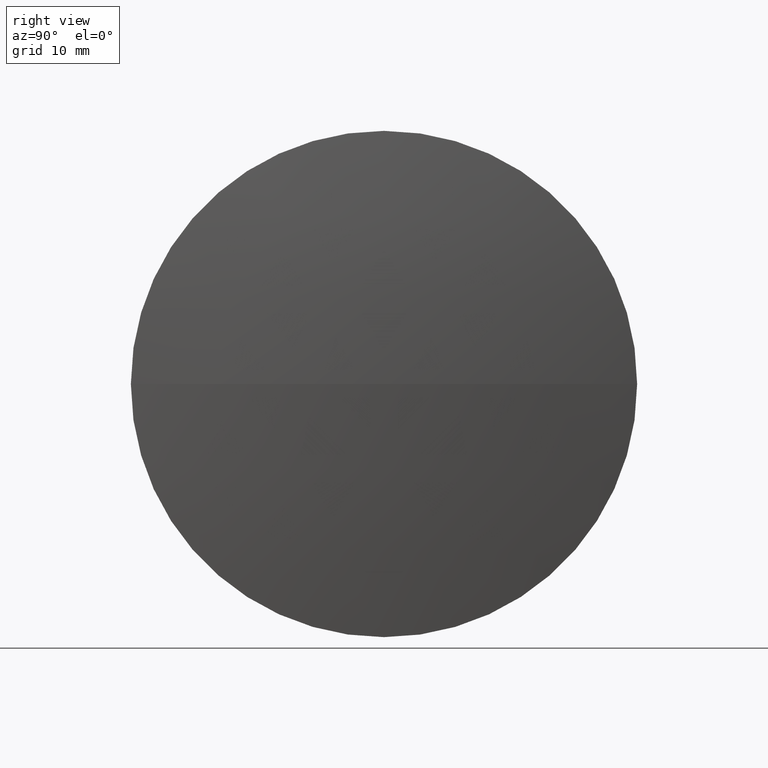
[diagram: clean part render]
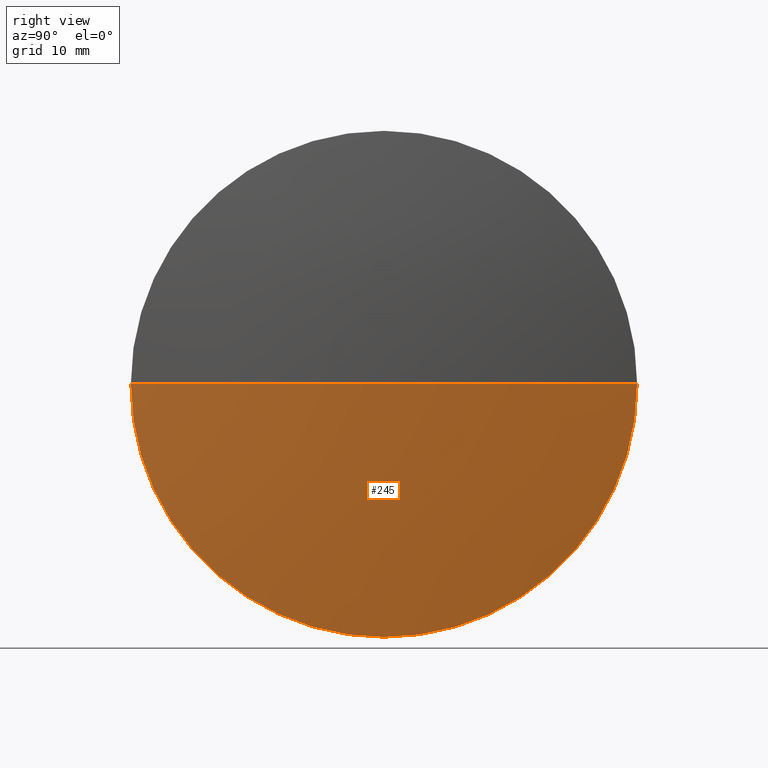
[diagram: same view with one face highlighted and labeled with its STEP entity id]
A machine part, right view. The second image highlights one B-rep face of the part: STEP entity #245.
In plain terms, the highlighted spherical surface has radius 181.7 mm.
Its self-contained STEP definition (entity closure, byte-faithful):
#18 = DIRECTION ( 'NONE',  ( -1.000000000000000000, -0.000000000000000000, -0.000000000000000000 ) ) ;
#21 = DIRECTION ( 'NONE',  ( -0.000000000000000000, 0.000000000000000000, -1.000000000000000000 ) ) ;
#25 = CIRCLE ( 'NONE', #315, 25.39999999999999858 ) ;
#27 = CIRCLE ( 'NONE', #408, 181.6999999999999886 ) ;
#32 = ORIENTED_EDGE ( 'NONE', *, *, #107, .F. ) ;
#34 = EDGE_LOOP ( 'NONE', ( #416, #413, #32, #247 ) ) ;
#49 = DIRECTION ( 'NONE',  ( 0.000000000000000000, 0.000000000000000000, 1.000000000000000000 ) ) ;
#51 = CARTESIAN_POINT ( 'NONE',  ( -73.83507646784927658, 39.01514532454268647, -3.110602869834275682E-15 ) ) ;
#60 = CARTESIAN_POINT ( 'NONE',  ( -73.83507646784927658, 89.81514532454266941, 0.000000000000000000 ) ) ;
#81 = AXIS2_PLACEMENT_3D ( 'NONE', #300, #18, #156 ) ;
#82 = DIRECTION ( 'NONE',  ( -0.000000000000000000, 0.000000000000000000, 1.000000000000000000 ) ) ;
#83 = AXIS2_PLACEMENT_3D ( 'NONE', #172, #170, #95 ) ;
#84 = CARTESIAN_POINT ( 'NONE',  ( -72.05097348642850363, 64.41514532454269215, 0.000000000000000000 ) ) ;
#90 = CARTESIAN_POINT ( 'NONE',  ( -253.7509734864285065, 64.41514532454267794, 0.000000000000000000 ) ) ;
#95 = DIRECTION ( 'NONE',  ( 0.000000000000000000, 1.000000000000000000, 1.224646799147353207E-16 ) ) ;
#96 = VERTEX_POINT ( 'NONE', #51 ) ;
#107 = EDGE_CURVE ( 'NONE', #244, #96, #120, .T. ) ;
#120 = CIRCLE ( 'NONE', #81, 25.39999999999999858 ) ;
#148 = VERTEX_POINT ( 'NONE', #84 ) ;
#156 = DIRECTION ( 'NONE',  ( 0.000000000000000000, 0.000000000000000000, 1.000000000000000000 ) ) ;
#170 = DIRECTION ( 'NONE',  ( 0.000000000000000000, 1.224646799147353207E-16, -1.000000000000000000 ) ) ;
#172 = CARTESIAN_POINT ( 'NONE',  ( -253.7509734864285065, 64.41514532454267794, 0.000000000000000000 ) ) ;
#216 = CARTESIAN_POINT ( 'NONE',  ( -253.7509734864285065, 64.41514532454267794, 0.000000000000000000 ) ) ;
#220 = CARTESIAN_POINT ( 'NONE',  ( -73.83507646784929079, 64.41514532454267794, 0.000000000000000000 ) ) ;
#225 = DIRECTION ( 'NONE',  ( -1.000000000000000000, -0.000000000000000000, -0.000000000000000000 ) ) ;
#244 = VERTEX_POINT ( 'NONE', #324 ) ;
#245 = ADVANCED_FACE ( 'NONE', ( #432 ), #253, .T. ) ;
#247 = ORIENTED_EDGE ( 'NONE', *, *, #287, .F. ) ;
#253 = SPHERICAL_SURFACE ( 'NONE', #268, 181.6999999999999886 ) ;
#258 = EDGE_CURVE ( 'NONE', #148, #312, #27, .T. ) ;
#268 = AXIS2_PLACEMENT_3D ( 'NONE', #90, #21, #290 ) ;
#287 = EDGE_CURVE ( 'NONE', #312, #244, #25, .T. ) ;
#290 = DIRECTION ( 'NONE',  ( 0.000000000000000000, 1.000000000000000000, 0.000000000000000000 ) ) ;
#291 = CIRCLE ( 'NONE', #83, 181.6999999999999886 ) ;
#300 = CARTESIAN_POINT ( 'NONE',  ( -73.83507646784929079, 64.41514532454267794, 0.000000000000000000 ) ) ;
#312 = VERTEX_POINT ( 'NONE', #60 ) ;
#315 = AXIS2_PLACEMENT_3D ( 'NONE', #220, #225, #49 ) ;
#324 = CARTESIAN_POINT ( 'NONE',  ( -73.83507646784929079, 64.41514532454267794, -25.39999999999999858 ) ) ;
#326 = DIRECTION ( 'NONE',  ( 1.000000000000000000, 0.000000000000000000, 0.000000000000000000 ) ) ;
#336 = EDGE_CURVE ( 'NONE', #148, #96, #291, .T. ) ;
#408 = AXIS2_PLACEMENT_3D ( 'NONE', #216, #82, #326 ) ;
#413 = ORIENTED_EDGE ( 'NONE', *, *, #336, .T. ) ;
#416 = ORIENTED_EDGE ( 'NONE', *, *, #258, .F. ) ;
#432 = FACE_OUTER_BOUND ( 'NONE', #34, .T. ) ;